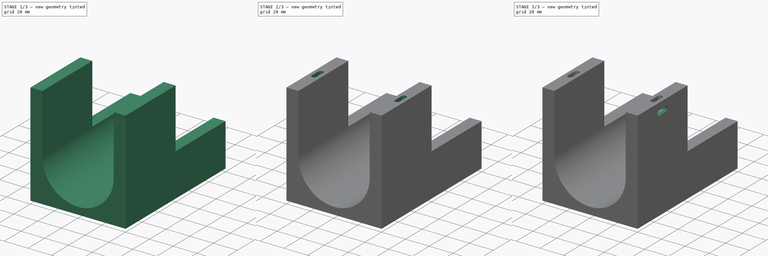
[diagram: build sequence overview — one tinted view per stage of 3, left to right]
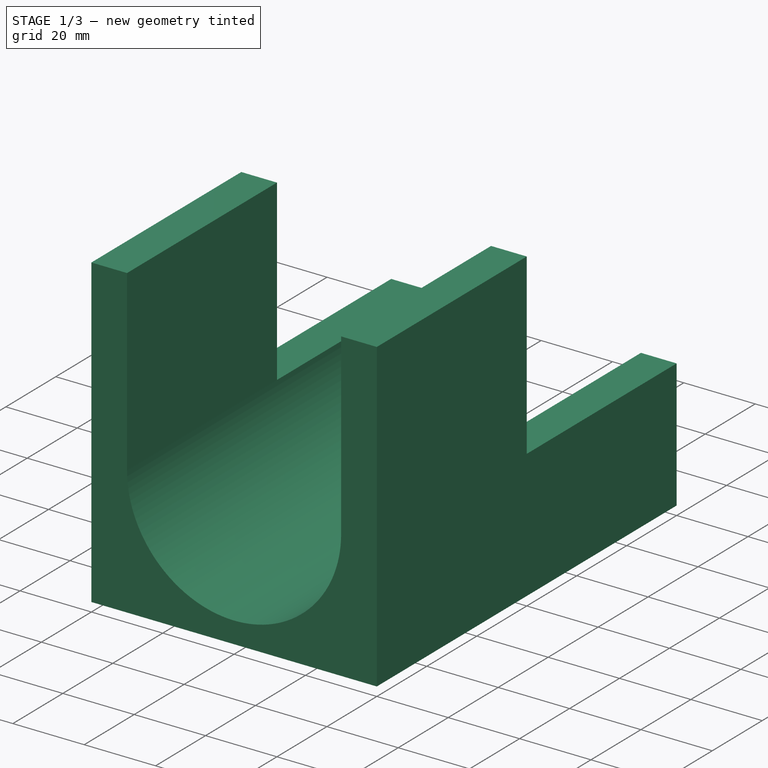
[diagram: stage 1 of 3 — iso view after this stage's code; geometry added in this stage tinted green]
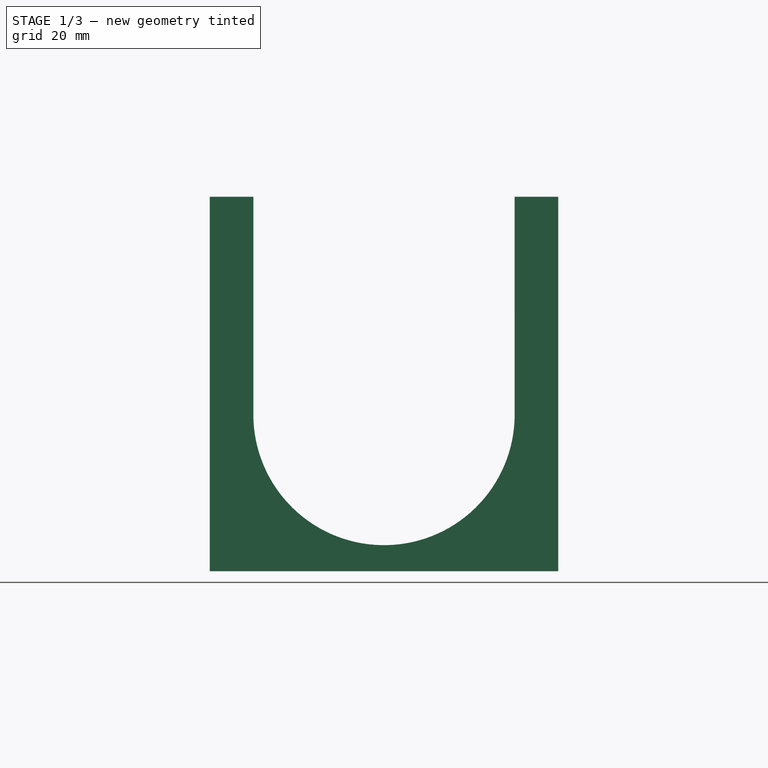
[diagram: stage 1 of 3 — front view after this stage's code; geometry added in this stage tinted green]
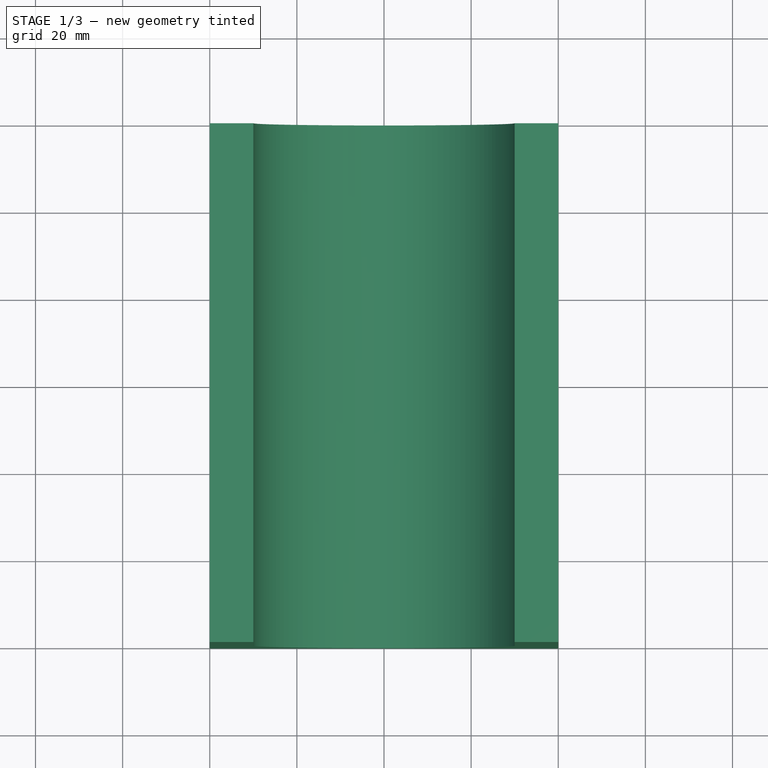
[diagram: stage 1 of 3 — top view after this stage's code; geometry added in this stage tinted green]
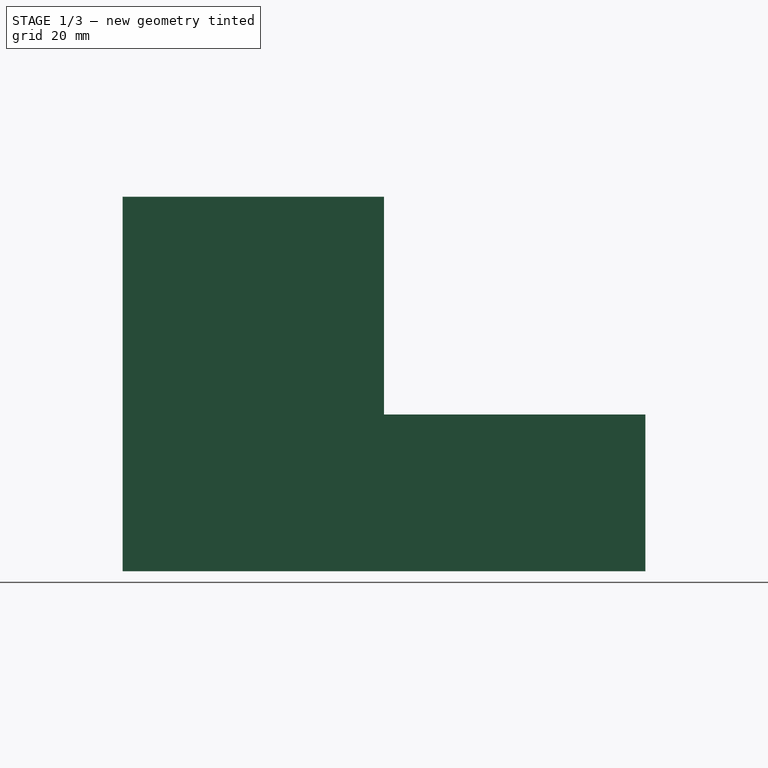
[diagram: stage 1 of 3 — right view after this stage's code; geometry added in this stage tinted green]
FCSTD DOCUMENT  (FreeCAD 0.17R13522 (Git))
Label: PumpStand
License: All rights reserved
LicenseURL: http://en.wikipedia.org/wiki/All_rights_reserved
objects: Sketcher::SketchObject×5, PartDesign::Pocket×3, PartDesign::Pad×2, PartDesign::Body×1, App::Part×1
note: 16 computed .brp shape members not serialized (recipe doc carries the construction recipe); baked Part::Feature solids carry a one-line shape summary decoded from their .brp

FEATURE [Sketcher::SketchObject] Sketch
  MapMode = 5
  Placement = pos=(0,0,0) rot=(1,0,0;1.5708rad)
  Support = -> [XZ_Plane001]
  sketch-geometry (9):
    g0: Circle [constr] CenterX=0 CenterY=36 CenterZ=0 NormalX=0 NormalY=0 NormalZ=1 AngleXU=0 Radius=30
    g1: LineSegment StartX=-40 StartY=0 StartZ=0 EndX=40 EndY=0 EndZ=0
    g2: LineSegment StartX=40 StartY=0 StartZ=0 EndX=40 EndY=36 EndZ=0
    g3: LineSegment StartX=40 StartY=36 StartZ=0 EndX=30 EndY=36 EndZ=0
    g4: LineSegment StartX=-40 StartY=0 StartZ=0 EndX=-40 EndY=36 EndZ=0
    g5: LineSegment StartX=-40 StartY=36 StartZ=0 EndX=-30 EndY=36 EndZ=0
    g6: LineSegment [constr] StartX=-30 StartY=36 StartZ=0 EndX=30 EndY=36 EndZ=0
    g7: LineSegment [constr] StartX=0 StartY=6 StartZ=0 EndX=0 EndY=0 EndZ=0
    g8: ArcOfCircle CenterX=0 CenterY=36 CenterZ=0 NormalX=0 NormalY=0 NormalZ=1 AngleXU=0 Radius=30 StartAngle=3.14159 EndAngle=6.28319
  constraints (28):
    c: PointOnObject(g0,g-2)
    c: Radius(g0) = 30
    c: Coincident(g1,g2)
    c: Vertical(g2)
    c: Coincident(g2,g3)
    c: Horizontal(g3)
    c: Coincident(g1,g4)
    c: Vertical(g4)
    c: Coincident(g4,g5)
    c: Horizontal(g5)
    c: PointOnObject(g6,g0)
    c: PointOnObject(g6,g0)
    c: Horizontal(g6)
    c: PointOnObject(g0,g6)
    c: Symmetric(g1,g1,g-2)
    c: PointOnObject(g-1,g1)
    c: Equal(g4,g2)
    c: Coincident(g5,g6)
    c: Coincident(g3,g6)
    c: PointOnObject(g7,g0)
    c: PointOnObject(g7,g1)
    c: Vertical(g7)
    c: PointOnObject(g7,g-2)
    c: DistanceY(g7,g7) = 6
    c: DistanceX(g3,g3) = 10
    c: Coincident(g8,g0)
    c: Coincident(g8,g5)
    c: Coincident(g8,g3)
FEATURE [PartDesign::Pad] Pad
  Length = 120
  Length2 = 100
  Placement = pos=(0,0,0) rot=(1,0,0;1.5708rad)
  Profile = -> Sketch
  Type = 0
FEATURE [Sketcher::SketchObject] Sketch001
  ExternalGeometry = -> [Pad]
  MapMode = 5
  Placement = pos=(0,0,36) rot=(0,0,1;3.14159rad)
  Support = -> [Pad]
  sketch-geometry (12):
    g0: LineSegment StartX=-40 StartY=120 StartZ=0 EndX=-30 EndY=120 EndZ=0
    g1: LineSegment StartX=-30 StartY=120 StartZ=0 EndX=-30 EndY=60 EndZ=0
    g2: LineSegment StartX=-30 StartY=60 StartZ=0 EndX=-40 EndY=60 EndZ=0
    g3: LineSegment StartX=-40 StartY=60 StartZ=0 EndX=-40 EndY=120 EndZ=0
    g4: LineSegment StartX=30 StartY=120 StartZ=0 EndX=40 EndY=120 EndZ=0
    g5: LineSegment StartX=40 StartY=120 StartZ=0 EndX=40 EndY=60 EndZ=0
    g6: LineSegment StartX=40 StartY=60 StartZ=0 EndX=30 EndY=60 EndZ=0
    g7: LineSegment StartX=30 StartY=60 StartZ=0 EndX=30 EndY=120 EndZ=0
    g8: LineSegment [constr] StartX=-40 StartY=120 StartZ=0 EndX=40 EndY=120 EndZ=0
    g9: LineSegment [constr] StartX=40 StartY=120 StartZ=0 EndX=40 EndY=60 EndZ=0
    g10: LineSegment [constr] StartX=-40 StartY=0 StartZ=0 EndX=-40 EndY=120 EndZ=0
    g11: LineSegment [constr] StartX=-30 StartY=60 StartZ=0 EndX=30 EndY=60 EndZ=0
  constraints (32):
    c: Coincident(g0,g1)
    c: Coincident(g1,g2)
    c: Coincident(g2,g3)
    c: Coincident(g3,g0)
    c: Horizontal(g0)
    c: Horizontal(g2)
    c: Vertical(g1)
    c: Vertical(g3)
    c: Coincident(g4,g5)
    c: Coincident(g5,g6)
    c: Coincident(g6,g7)
    c: Coincident(g7,g4)
    c: Horizontal(g4)
    c: Horizontal(g6)
    c: Vertical(g5)
    c: Vertical(g7)
    c: Coincident(g8,g9)
    c: Coincident(g10,g8)
    c: Horizontal(g8)
    c: Vertical(g9)
    c: Vertical(g10)
    c: Coincident(g8,g0)
    c: Coincident(g9,g5)
    c: Coincident(g4,g8)
    c: DistanceY(g3,g3) = 60
    c: Coincident(g11,g1)
    c: Coincident(g11,g6)
    c: Horizontal(g11)
    c: Equal(g2,g6)
    c: Coincident(g10,g-3)
    c: Coincident(g0,g-5)
    c: Coincident(g4,g-6)
FEATURE [PartDesign::Pad] Pad001
  BaseFeature = -> Pad
  Length = 50
  Length2 = 100
  Placement = pos=(0,0,0) rot=(1,0,0;1.5708rad)
  Profile = -> Sketch001
  Type = 0
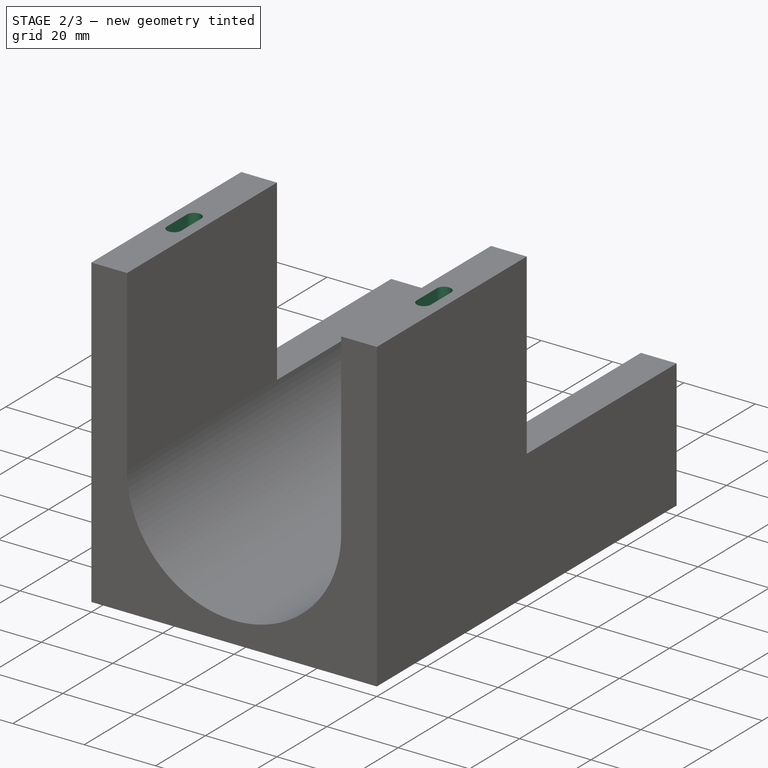
[diagram: stage 2 of 3 — iso view after this stage's code; geometry added in this stage tinted green]
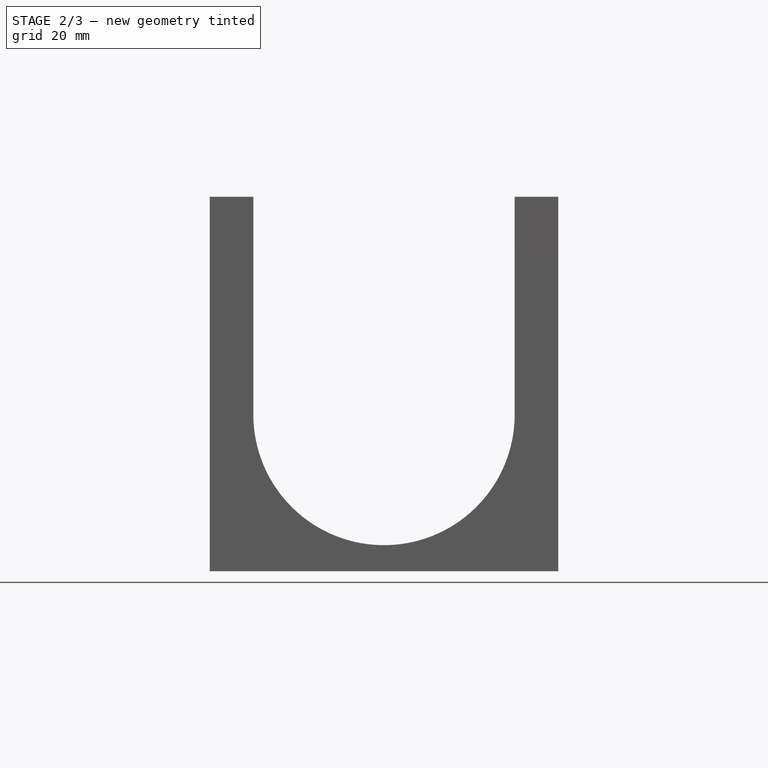
[diagram: stage 2 of 3 — front view after this stage's code; geometry added in this stage tinted green]
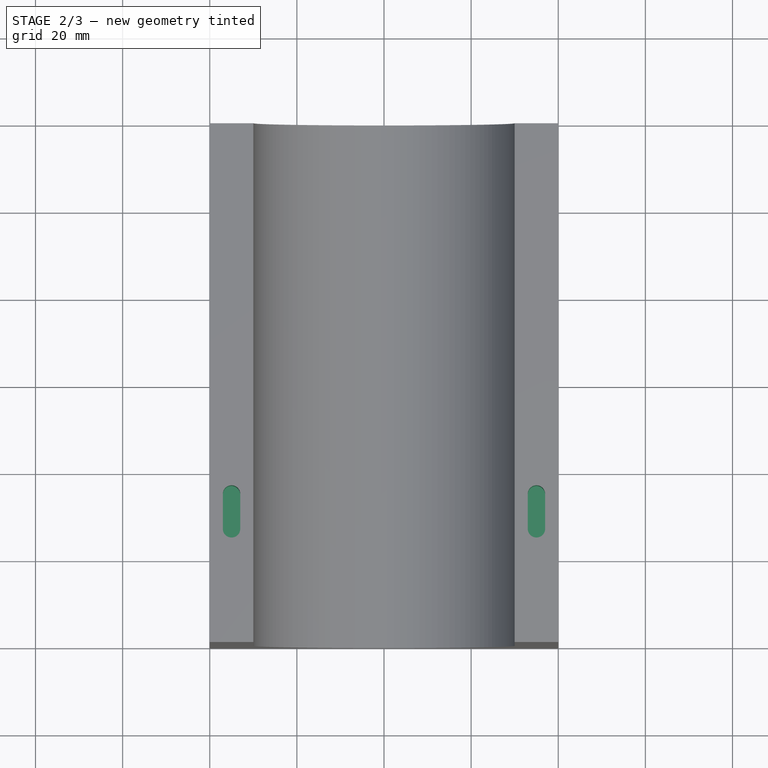
[diagram: stage 2 of 3 — top view after this stage's code; geometry added in this stage tinted green]
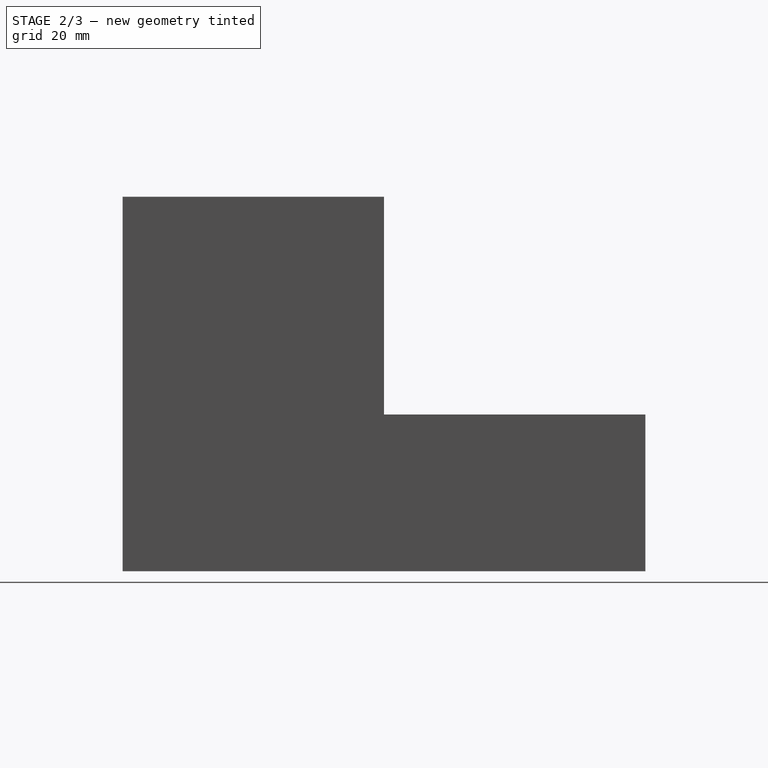
[diagram: stage 2 of 3 — right view after this stage's code; geometry added in this stage tinted green]
FEATURE [Sketcher::SketchObject] Sketch002
  ExternalGeometry = -> [Pad001]
  MapMode = 5
  Placement = pos=(0,0,86) rot=(0,0,1;3.14159rad)
  Support = -> [Pad001]
  sketch-geometry (14):
    g0: LineSegment [constr] StartX=35 StartY=60 StartZ=0 EndX=35 EndY=120 EndZ=0
    g1: LineSegment [constr] StartX=-35 StartY=60 StartZ=0 EndX=-35 EndY=120 EndZ=0
    g2: LineSegment [constr] StartX=33 StartY=90 StartZ=0 EndX=-33 EndY=90 EndZ=0
    g3: LineSegment [constr] StartX=37 StartY=90 StartZ=0 EndX=33 EndY=90 EndZ=0
    g4: LineSegment [constr] StartX=-33 StartY=90 StartZ=0 EndX=-37 EndY=90 EndZ=0
    g5: ArcOfCircle CenterX=35 CenterY=86 CenterZ=0 NormalX=0 NormalY=0 NormalZ=1 AngleXU=0 Radius=2 StartAngle=3.14159 EndAngle=6.28319
    g6: ArcOfCircle CenterX=35 CenterY=94 CenterZ=0 NormalX=0 NormalY=0 NormalZ=1 AngleXU=0 Radius=2 StartAngle=0 EndAngle=3.14159
    g7: LineSegment StartX=37 StartY=86 StartZ=0 EndX=37 EndY=94 EndZ=0
    g8: LineSegment StartX=33 StartY=86 StartZ=0 EndX=33 EndY=94 EndZ=0
    g9: ArcOfCircle CenterX=-35 CenterY=86 CenterZ=0 NormalX=0 NormalY=0 NormalZ=1 AngleXU=0 Radius=2 StartAngle=3.14159 EndAngle=6.28319
    g10: ArcOfCircle CenterX=-35 CenterY=94 CenterZ=0 NormalX=0 NormalY=0 NormalZ=1 AngleXU=0 Radius=2 StartAngle=0 EndAngle=3.14159
    g11: LineSegment StartX=-33 StartY=86 StartZ=0 EndX=-33 EndY=94 EndZ=0
    g12: LineSegment StartX=-37 StartY=86 StartZ=0 EndX=-37 EndY=94 EndZ=0
    g13: GeomPoint X=35 Y=90 Z=0
  constraints (40):
    c: PointOnObject(g0,g-4)
    c: PointOnObject(g0,g-5)
    c: Vertical(g0)
    c: PointOnObject(g1,g-3)
    c: PointOnObject(g1,g-6)
    c: Vertical(g1)
    c: Symmetric(g-5,g-5,g0)
    c: Symmetric(g-6,g-6,g1)
    c: Horizontal(g2)
    c: Horizontal(g3)
    c: Horizontal(g4)
    c: Tangent(g5,g8) = 1.5708
    c: Tangent(g5,g7) = -1.5708
    c: Tangent(g7,g6) = -1.5708
    c: Tangent(g8,g6) = 1.5708
    c: Vertical(g7)
    c: Equal(g5,g6)
    c: PointOnObject(g5,g0)
    c: Tangent(g9,g12) = 1.5708
    c: Tangent(g9,g11) = -1.5708
    c: Tangent(g11,g10) = -1.5708
    c: Tangent(g12,g10) = 1.5708
    c: Vertical(g11)
    c: Equal(g9,g10)
    c: PointOnObject(g9,g1)
    c: PointOnObject(g3,g7)
    c: PointOnObject(g3,g8)
    c: PointOnObject(g4,g11)
    c: PointOnObject(g4,g12)
    c: Equal(g3,g4)
    c: Coincident(g3,g2)
    c: Coincident(g2,g4)
    c: Symmetric(g6,g5,g3)
    c: Symmetric(g9,g10,g4)
    c: PointOnObject(g13,g3)
    c: PointOnObject(g13,g0)
    c: Symmetric(g0,g0,g13)
    c: DistanceX(g5,g5) = 4
    c: DistanceY(g7,g7) = 8
    c: Equal(g8,g11)
FEATURE [PartDesign::Pocket] Pocket
  BaseFeature = -> Pad001
  Length = 10
  Length2 = 100
  Placement = pos=(0,0,0) rot=(1,0,0;1.5708rad)
  Profile = -> Sketch002
  Type = 0
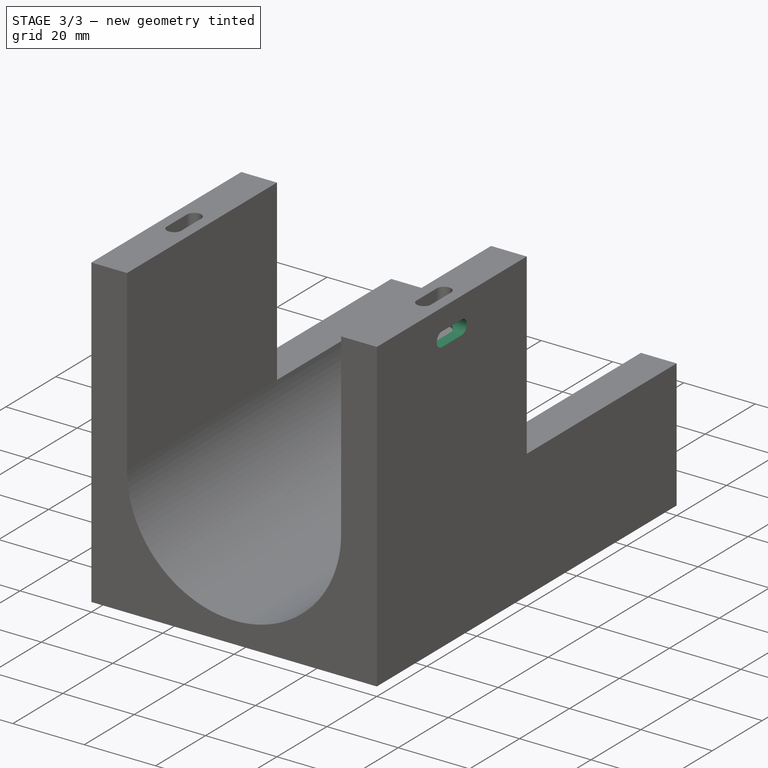
[diagram: stage 3 of 3 — iso view after this stage's code; geometry added in this stage tinted green]
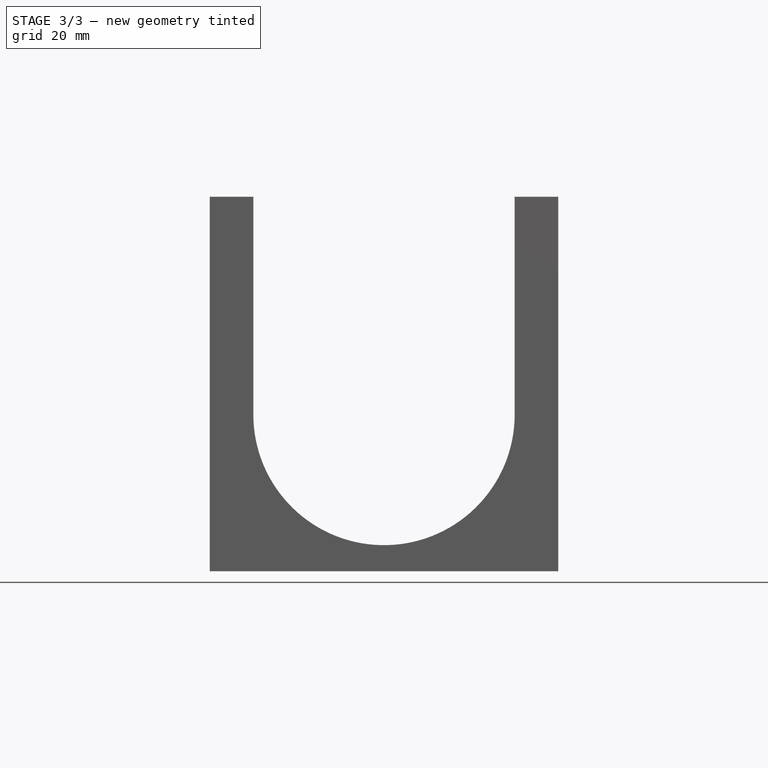
[diagram: stage 3 of 3 — front view after this stage's code; geometry added in this stage tinted green]
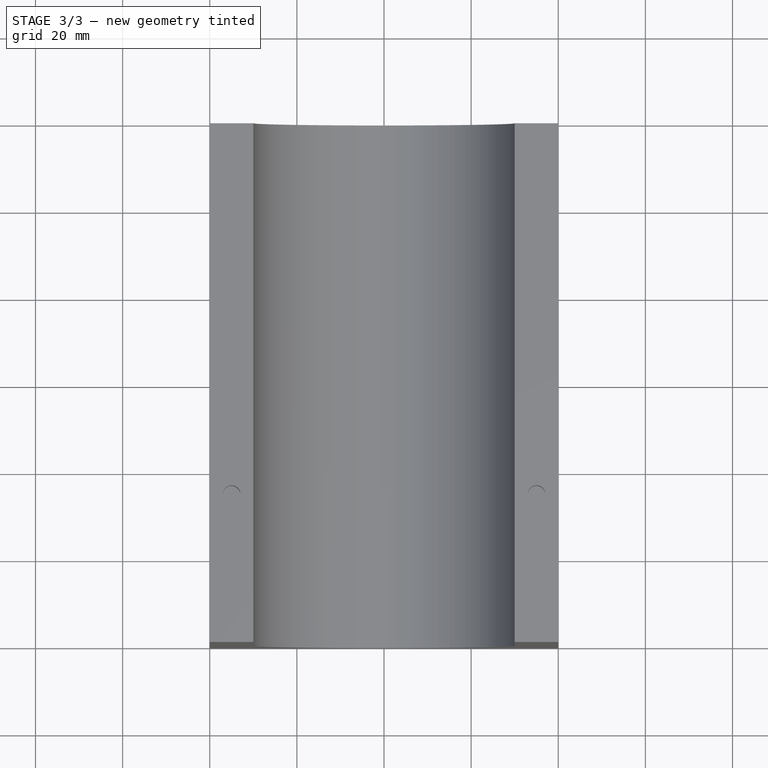
[diagram: stage 3 of 3 — top view after this stage's code; geometry added in this stage tinted green]
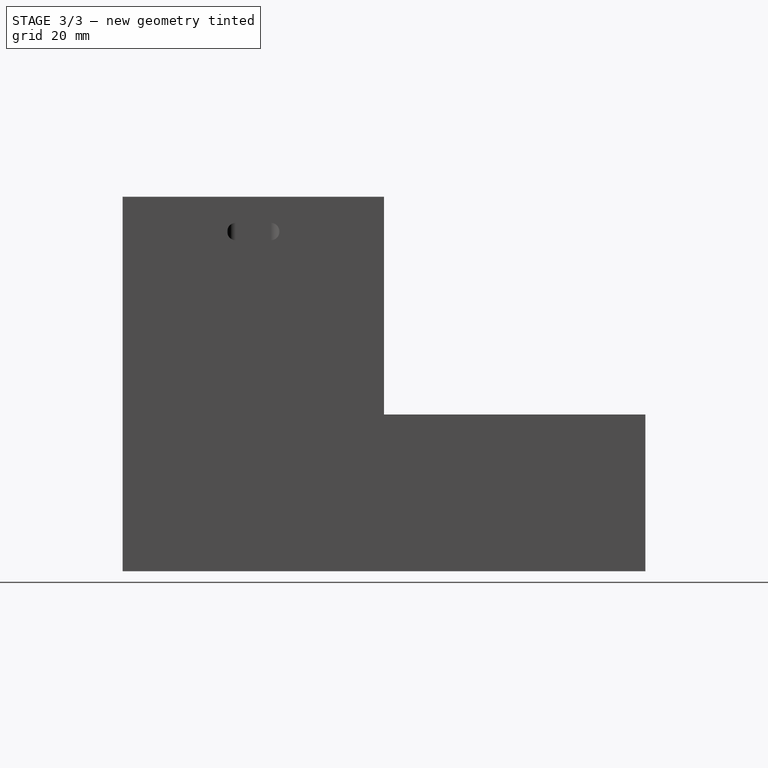
[diagram: stage 3 of 3 — right view after this stage's code; geometry added in this stage tinted green]
FEATURE [Sketcher::SketchObject] Sketch003
  ExternalGeometry = -> [Pocket]
  MapMode = 5
  Placement = pos=(-40,0,0) rot=(0.707107,0,-0.707107;3.14159rad)
  Support = -> [Pocket]
  sketch-geometry (6):
    g0: ArcOfCircle CenterX=-78 CenterY=86 CenterZ=0 NormalX=0 NormalY=0 NormalZ=1 AngleXU=0 Radius=2 StartAngle=3.14159 EndAngle=6.28319
    g1: ArcOfCircle CenterX=-78 CenterY=94 CenterZ=0 NormalX=0 NormalY=0 NormalZ=1 AngleXU=0 Radius=2 StartAngle=0 EndAngle=3.14159
    g2: LineSegment StartX=-76 StartY=86 StartZ=0 EndX=-76 EndY=94 EndZ=0
    g3: LineSegment StartX=-80 StartY=86 StartZ=0 EndX=-80 EndY=94 EndZ=0
    g4: LineSegment [constr] StartX=-76 StartY=86 StartZ=0 EndX=-86 EndY=86 EndZ=0
    g5: LineSegment [constr] StartX=-76 StartY=94 StartZ=0 EndX=-86 EndY=94 EndZ=0
  constraints (16):
    c: Tangent(g0,g3) = 1.5708
    c: Tangent(g0,g2) = -1.5708
    c: Tangent(g2,g1) = -1.5708
    c: Tangent(g3,g1) = 1.5708
    c: Vertical(g2)
    c: Equal(g0,g1)
    c: Coincident(g4,g-4)
    c: PointOnObject(g4,g-3)
    c: Horizontal(g4)
    c: Coincident(g5,g-4)
    c: Horizontal(g5)
    c: PointOnObject(g0,g-4)
    c: DistanceX(g1,g1) = 4
    c: PointOnObject(g0,g4)
    c: PointOnObject(g1,g5)
    c: PointOnObject(g5,g-3)
FEATURE [PartDesign::Pocket] Pocket001
  BaseFeature = -> Pocket
  Length = 5
  Length2 = 100
  Placement = pos=(0,0,0) rot=(1,0,0;1.5708rad)
  Profile = -> Sketch003
  Type = 0
FEATURE [Sketcher::SketchObject] Sketch004
  ExternalGeometry = -> [Pocket001]
  MapMode = 5
  Placement = pos=(40,0,0) rot=(0.707107,0,0.707107;3.14159rad)
  Support = -> [Pocket001]
  sketch-geometry (4):
    g0: ArcOfCircle CenterX=78 CenterY=94 CenterZ=0 NormalX=0 NormalY=0 NormalZ=1 AngleXU=0 Radius=2 StartAngle=0 EndAngle=3.14159
    g1: ArcOfCircle CenterX=78 CenterY=86 CenterZ=0 NormalX=0 NormalY=0 NormalZ=1 AngleXU=0 Radius=2 StartAngle=3.14159 EndAngle=6.28319
    g2: LineSegment StartX=76 StartY=94 StartZ=0 EndX=76 EndY=86 EndZ=0
    g3: LineSegment StartX=80 StartY=94 StartZ=0 EndX=80 EndY=86 EndZ=0
  constraints (9):
    c: Tangent(g0,g3) = 1.5708
    c: Tangent(g0,g2) = -1.5708
    c: Tangent(g2,g1) = -1.5708
    c: Tangent(g3,g1) = 1.5708
    c: Vertical(g2)
    c: Equal(g0,g1)
    c: PointOnObject(g0,g-5)
    c: Coincident(g1,g-6)
    c: DistanceX(g1,g1) = 4
FEATURE [PartDesign::Pocket] Pocket002
  BaseFeature = -> Pocket001
  Length = 5
  Length2 = 100
  Placement = pos=(0,0,0) rot=(1,0,0;1.5708rad)
  Profile = -> Sketch004
  Type = 0
FEATURE [PartDesign::Body] Body
  Group = -> [Sketch,Pad,Sketch001,Pad001,Sketch002,Pocket,Sketch003,Pocket001,Sketch004,Pocket002]
  Origin = -> Origin001
  Tip = -> Pocket002
FEATURE [App::Part] Part
  Group = -> [Body]
  License = CC BY 3.0
  LicenseURL = http://creativecommons.org/licenses/by/3.0/
  Origin = -> Origin
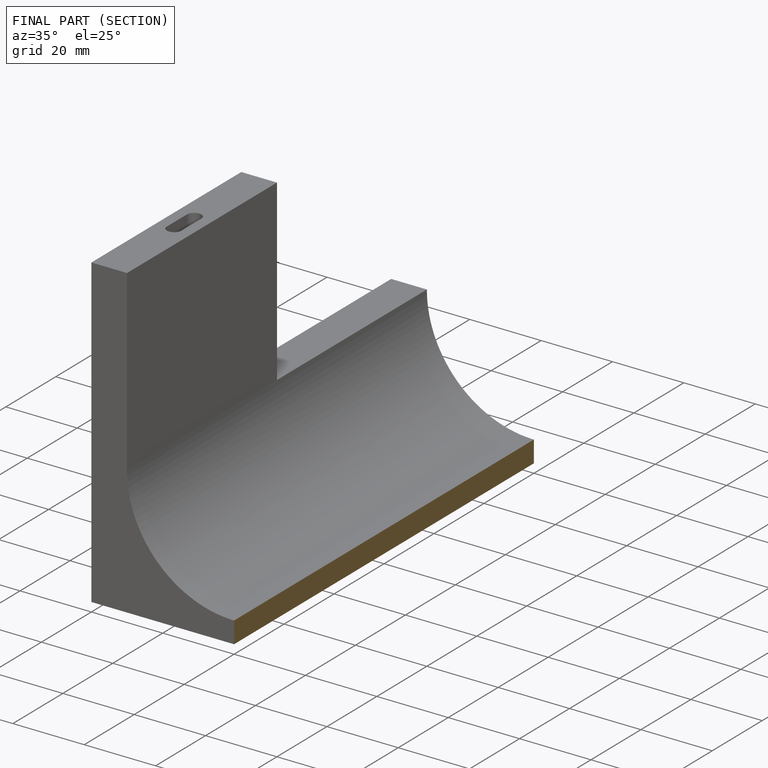
[diagram: finished part — half-section view (interior)]
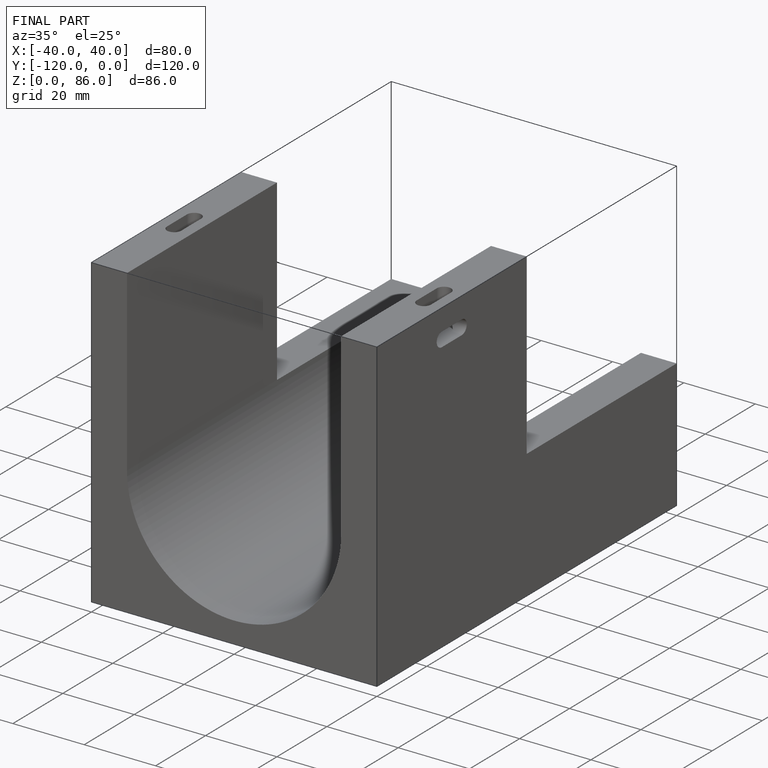
[diagram: finished part — iso view with bounding-box wireframe]
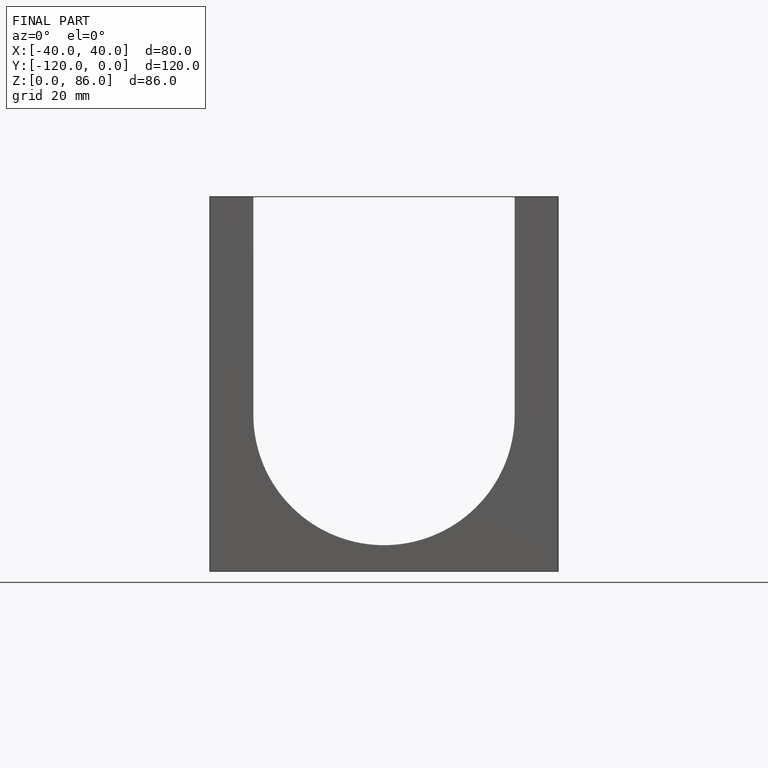
[diagram: finished part — front view with bounding-box wireframe]
